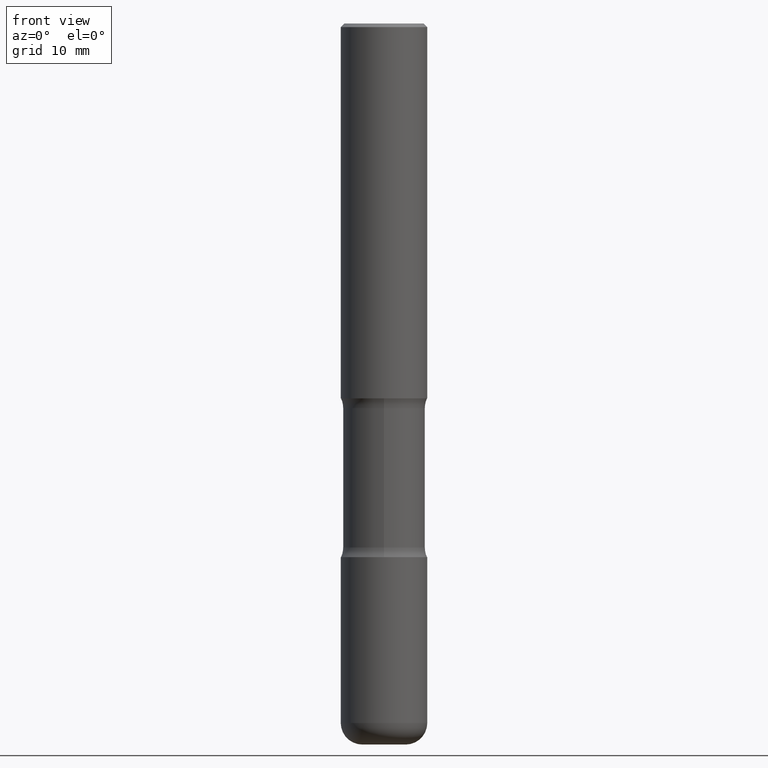
[diagram: clean part render]
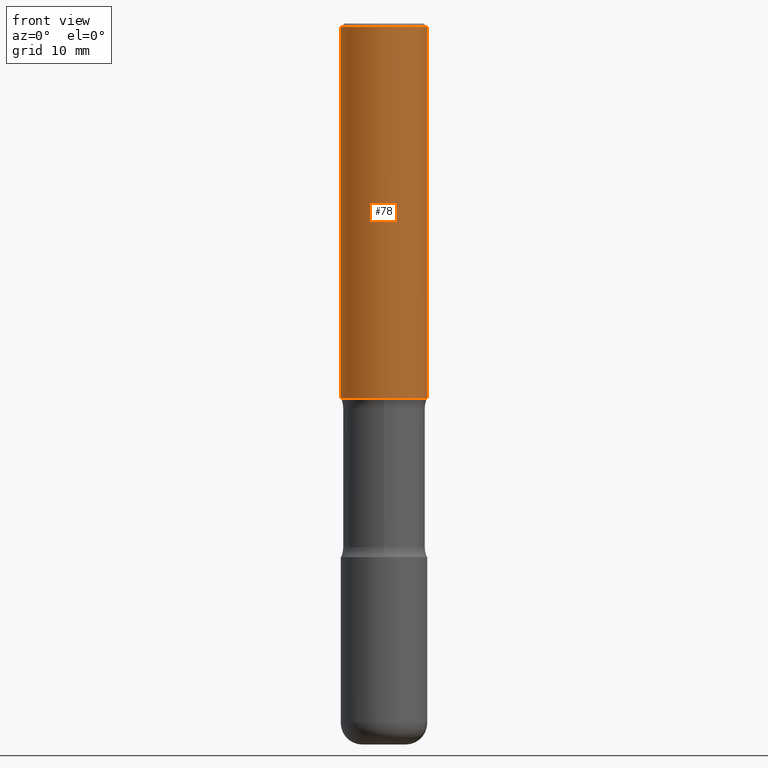
[diagram: same view with one face highlighted and labeled with its STEP entity id]
A machine part, front view. The second image highlights one B-rep face of the part: STEP entity #78.
In plain terms, the highlighted cylindrical surface (partial cylindrical patch) has radius 5.9995 mm, axis along (-0, 0, 1).
Its self-contained STEP definition (entity closure, byte-faithful):
#33 = DIRECTION ( 'NONE',  ( -2.445468806185136597E-29, 3.491481338843145583E-15, 1.000000000000000000 ) ) ;
#36 = VECTOR ( 'NONE', #163, 39.37007874015748143 ) ;
#53 = CARTESIAN_POINT ( 'NONE',  ( 0.2361999999999999933, -1.649375784469496131E-15, 1.151752954443000088E-29 ) ) ;
#68 = VERTEX_POINT ( 'NONE', #426 ) ;
#76 = CYLINDRICAL_SURFACE ( 'NONE', #121, 0.2361999999999999933 ) ;
#78 = ADVANCED_FACE ( 'NONE', ( #124 ), #76, .T. ) ;
#82 = CARTESIAN_POINT ( 'NONE',  ( 5.006363740022212241E-29, -7.147760596879688202E-15, -2.047200000000000131 ) ) ;
#91 = LINE ( 'NONE', #53, #383 ) ;
#112 = ORIENTED_EDGE ( 'NONE', *, *, #347, .F. ) ;
#118 = ORIENTED_EDGE ( 'NONE', *, *, #125, .F. ) ;
#121 = AXIS2_PLACEMENT_3D ( 'NONE', #336, #33, #329 ) ;
#124 = FACE_OUTER_BOUND ( 'NONE', #269, .T. ) ;
#125 = EDGE_CURVE ( 'NONE', #68, #201, #295, .T. ) ;
#163 = DIRECTION ( 'NONE',  ( -2.445468806185136877E-29, 3.491481338843145188E-15, 1.000000000000000000 ) ) ;
#190 = ORIENTED_EDGE ( 'NONE', *, *, #317, .T. ) ;
#198 = AXIS2_PLACEMENT_3D ( 'NONE', #82, #331, #205 ) ;
#201 = VERTEX_POINT ( 'NONE', #487 ) ;
#205 = DIRECTION ( 'NONE',  ( 1.000000000000000000, -6.982962677686269077E-15, 0.000000000000000000 ) ) ;
#269 = EDGE_LOOP ( 'NONE', ( #118, #355, #190, #112 ) ) ;
#279 = CARTESIAN_POINT ( 'NONE',  ( 4.890937612370289799E-31, -6.982962677686315028E-17, -0.02000000000000006981 ) ) ;
#280 = VERTEX_POINT ( 'NONE', #297 ) ;
#283 = AXIS2_PLACEMENT_3D ( 'NONE', #279, #323, #312 ) ;
#295 = LINE ( 'NONE', #369, #36 ) ;
#297 = CARTESIAN_POINT ( 'NONE',  ( 0.2362000000000001321, -8.797136381349186305E-15, -2.047200000000000131 ) ) ;
#303 = CIRCLE ( 'NONE', #198, 0.2362000000000001321 ) ;
#312 = DIRECTION ( 'NONE',  ( 1.000000000000000000, -6.982962677686267499E-15, 0.000000000000000000 ) ) ;
#316 = VERTEX_POINT ( 'NONE', #433 ) ;
#317 = EDGE_CURVE ( 'NONE', #280, #316, #91, .T. ) ;
#323 = DIRECTION ( 'NONE',  ( -2.445468806185136597E-29, 3.491481338843145583E-15, 1.000000000000000000 ) ) ;
#329 = DIRECTION ( 'NONE',  ( 1.000000000000000000, -6.982962677686266711E-15, 4.876176775795936353E-29 ) ) ;
#331 = DIRECTION ( 'NONE',  ( -2.445468806185136597E-29, 3.491481338843145583E-15, 1.000000000000000000 ) ) ;
#336 = CARTESIAN_POINT ( 'NONE',  ( 0.000000000000000000, 0.000000000000000000, 0.000000000000000000 ) ) ;
#347 = EDGE_CURVE ( 'NONE', #201, #316, #401, .T. ) ;
#355 = ORIENTED_EDGE ( 'NONE', *, *, #539, .T. ) ;
#369 = CARTESIAN_POINT ( 'NONE',  ( -0.2361999999999999933, 1.678301941865356591E-15, -1.161852468318208757E-29 ) ) ;
#383 = VECTOR ( 'NONE', #434, 39.37007874015748143 ) ;
#401 = CIRCLE ( 'NONE', #283, 0.2361999999999998823 ) ;
#426 = CARTESIAN_POINT ( 'NONE',  ( -0.2362000000000001598, -1.930493169962915017E-15, -2.047200000000000131 ) ) ;
#433 = CARTESIAN_POINT ( 'NONE',  ( 0.2361999999999998823, -1.690279253850498179E-15, -0.02000000000000006981 ) ) ;
#434 = DIRECTION ( 'NONE',  ( -2.445468806185136877E-29, 3.491481338843145188E-15, 1.000000000000000000 ) ) ;
#487 = CARTESIAN_POINT ( 'NONE',  ( -0.2361999999999998823, 1.579546157692632438E-15, -0.02000000000000006981 ) ) ;
#539 = EDGE_CURVE ( 'NONE', #68, #280, #303, .T. ) ;